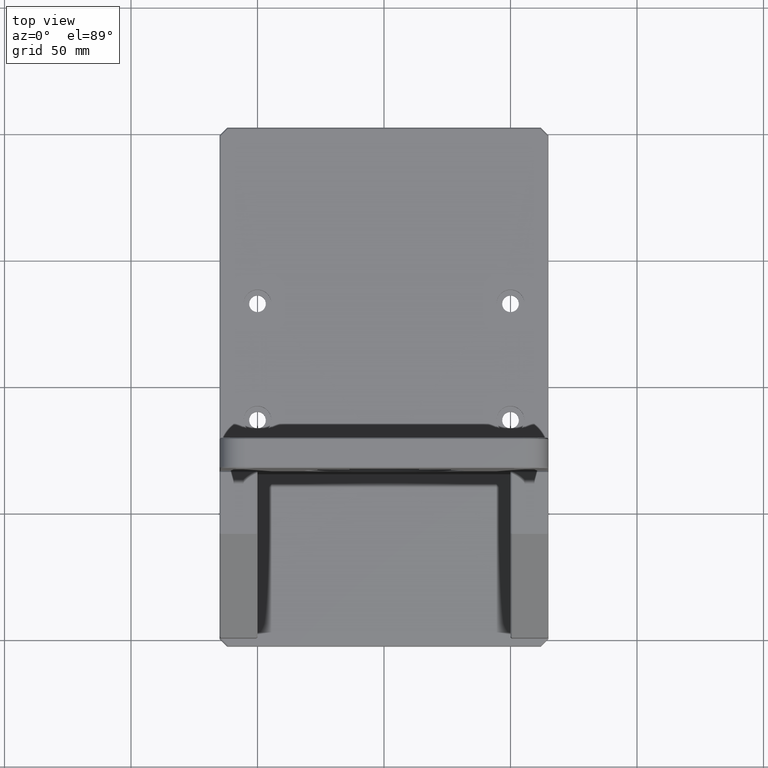
[diagram: clean part render]
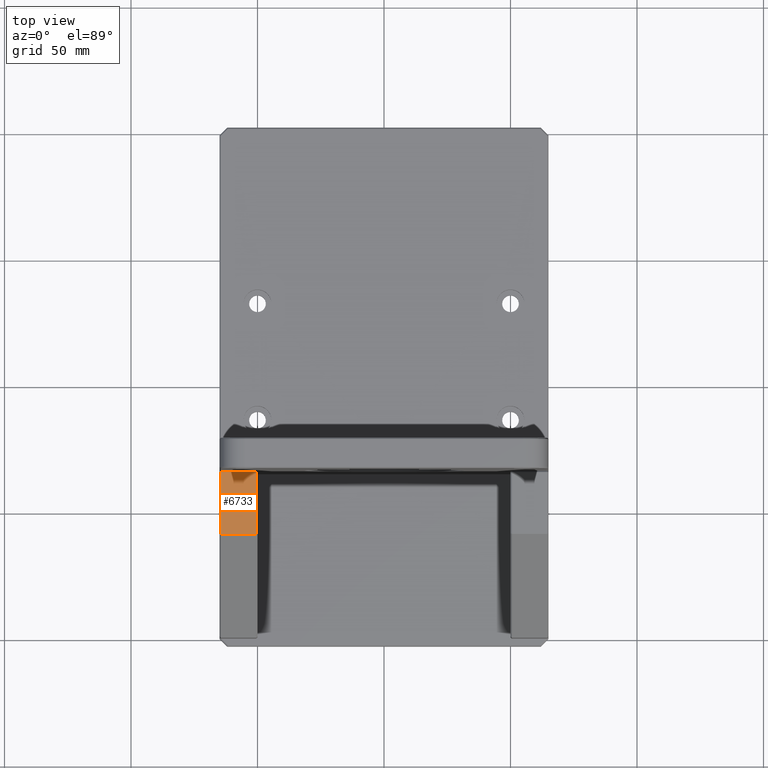
[diagram: same view with one face highlighted and labeled with its STEP entity id]
A machine part, top view. The second image highlights one B-rep face of the part: STEP entity #6733.
In plain terms, the highlighted planar face has unit normal (-0, 0, -1).
Its self-contained STEP definition (entity closure, byte-faithful):
#970 = LINE ( 'NONE', #11132, #9301 ) ;
#1152 = VECTOR ( 'NONE', #12944, 1000.000000000000000 ) ;
#1586 = EDGE_CURVE ( 'NONE', #8237, #7782, #12813, .T. ) ;
#1918 = DIRECTION ( 'NONE',  ( -1.000000000000000000, -1.396592535537253342E-14, 1.047444401652940007E-14 ) ) ;
#1993 = EDGE_CURVE ( 'NONE', #7782, #6305, #8897, .T. ) ;
#2711 = ORIENTED_EDGE ( 'NONE', *, *, #1586, .T. ) ;
#3021 = FACE_OUTER_BOUND ( 'NONE', #10725, .T. ) ;
#3276 = CARTESIAN_POINT ( 'NONE',  ( -64.99999999999855049, -34.50000000000093792, 92.00000000000066791 ) ) ;
#3429 = CARTESIAN_POINT ( 'NONE',  ( -50.49999999999852207, -35.00000000000072475, 92.00000000000051159 ) ) ;
#3800 = CARTESIAN_POINT ( 'NONE',  ( -64.49999999999856470, -34.50000000000093081, 92.00000000000066791 ) ) ;
#4441 = VECTOR ( 'NONE', #6908, 1000.000000000000000 ) ;
#4751 = LINE ( 'NONE', #8883, #9229 ) ;
#5014 = CARTESIAN_POINT ( 'NONE',  ( -50.49999999999818812, -59.50000000000073896, 92.00000000000051159 ) ) ;
#5706 = CARTESIAN_POINT ( 'NONE',  ( -64.99999999999819522, -59.50000000000093792, 92.00000000000066791 ) ) ;
#5909 = CARTESIAN_POINT ( 'NONE',  ( -64.49999999999820943, -59.50000000000093081, 92.00000000000066791 ) ) ;
#6261 = DIRECTION ( 'NONE',  ( -1.047444401652940007E-14, 0.0000000000000000000, -1.000000000000000000 ) ) ;
#6305 = VERTEX_POINT ( 'NONE', #5014 ) ;
#6336 = EDGE_CURVE ( 'NONE', #6305, #9581, #4751, .T. ) ;
#6733 = ADVANCED_FACE ( 'NONE', ( #3021 ), #12242, .F. ) ;
#6906 = AXIS2_PLACEMENT_3D ( 'NONE', #3276, #6261, #8324 ) ;
#6908 = DIRECTION ( 'NONE',  ( 1.396592535537253342E-14, -1.000000000000000000, -1.462853032738780738E-28 ) ) ;
#7782 = VERTEX_POINT ( 'NONE', #5909 ) ;
#8232 = EDGE_CURVE ( 'NONE', #9581, #8237, #970, .T. ) ;
#8237 = VERTEX_POINT ( 'NONE', #9139 ) ;
#8324 = DIRECTION ( 'NONE',  ( -1.000000000000000000, -1.396592535537253342E-14, 1.047444401652940007E-14 ) ) ;
#8883 = CARTESIAN_POINT ( 'NONE',  ( -50.49999999999852918, -34.50000000000073896, 92.00000000000051159 ) ) ;
#8897 = LINE ( 'NONE', #5706, #1152 ) ;
#9139 = CARTESIAN_POINT ( 'NONE',  ( -64.49999999999856470, -35.00000000000091660, 92.00000000000066791 ) ) ;
#9229 = VECTOR ( 'NONE', #12926, 1000.000000000000000 ) ;
#9301 = VECTOR ( 'NONE', #1918, 1000.000000000000000 ) ;
#9581 = VERTEX_POINT ( 'NONE', #3429 ) ;
#10709 = ORIENTED_EDGE ( 'NONE', *, *, #8232, .T. ) ;
#10725 = EDGE_LOOP ( 'NONE', ( #12899, #10734, #10709, #2711 ) ) ;
#10734 = ORIENTED_EDGE ( 'NONE', *, *, #6336, .T. ) ;
#11132 = CARTESIAN_POINT ( 'NONE',  ( -64.99999999999855049, -35.00000000000092371, 92.00000000000066791 ) ) ;
#12242 = PLANE ( 'NONE',  #6906 ) ;
#12813 = LINE ( 'NONE', #3800, #4441 ) ;
#12899 = ORIENTED_EDGE ( 'NONE', *, *, #1993, .T. ) ;
#12926 = DIRECTION ( 'NONE',  ( -1.396592535537253342E-14, 1.000000000000000000, 1.462853032738780738E-28 ) ) ;
#12944 = DIRECTION ( 'NONE',  ( 1.000000000000000000, 1.396592535537253342E-14, -1.047444401652940007E-14 ) ) ;